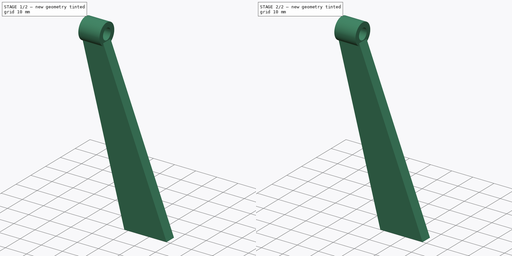
[diagram: build sequence overview — one tinted view per stage of 2, left to right]
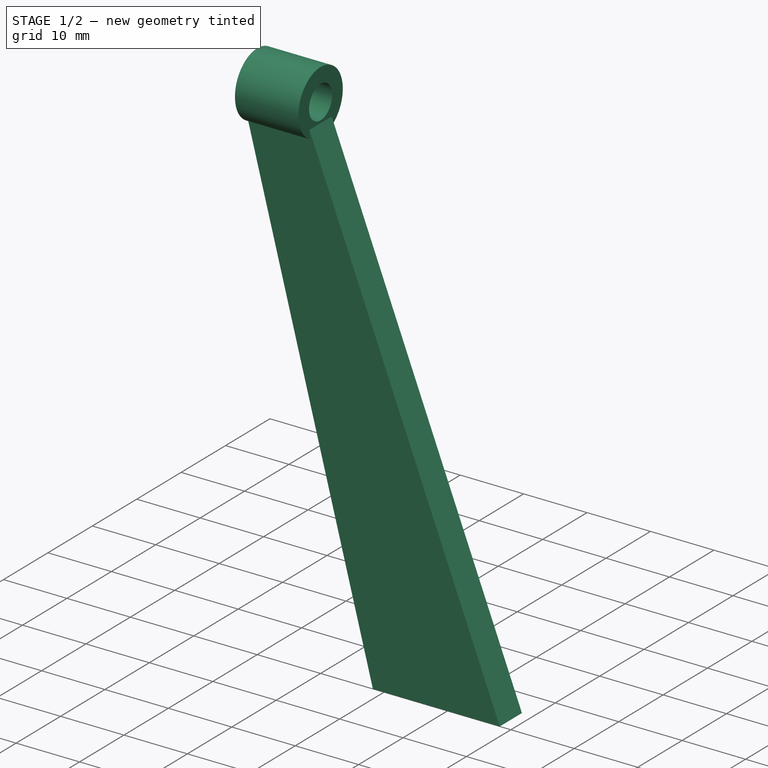
[diagram: stage 1 of 2 — iso view after this stage's code; geometry added in this stage tinted green]
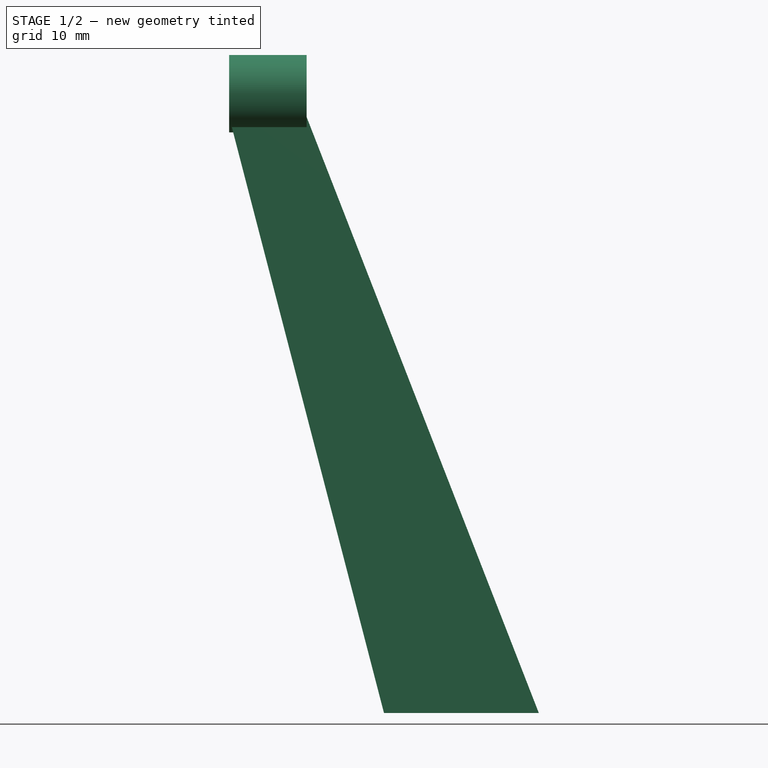
[diagram: stage 1 of 2 — front view after this stage's code; geometry added in this stage tinted green]
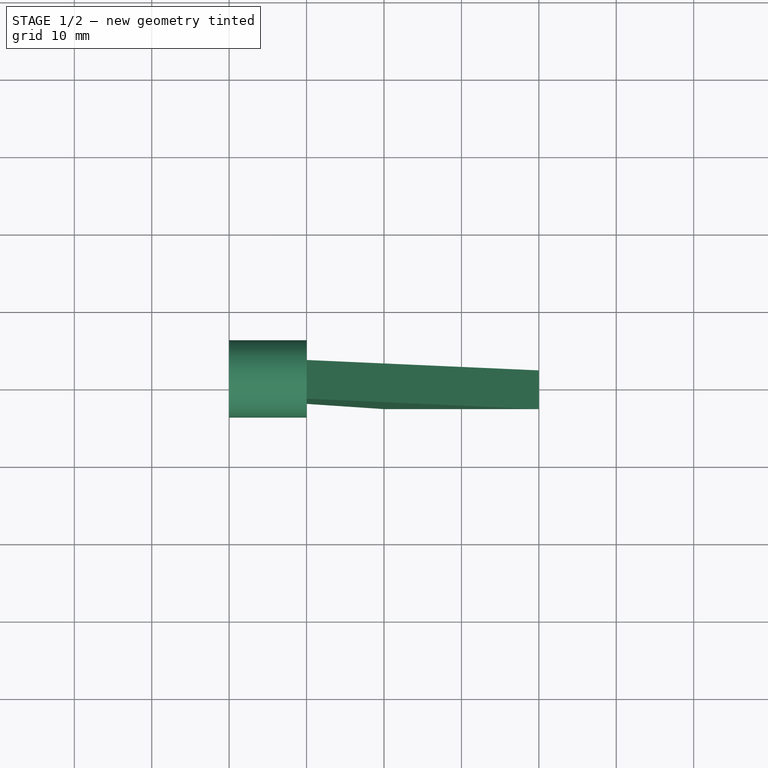
[diagram: stage 1 of 2 — top view after this stage's code; geometry added in this stage tinted green]
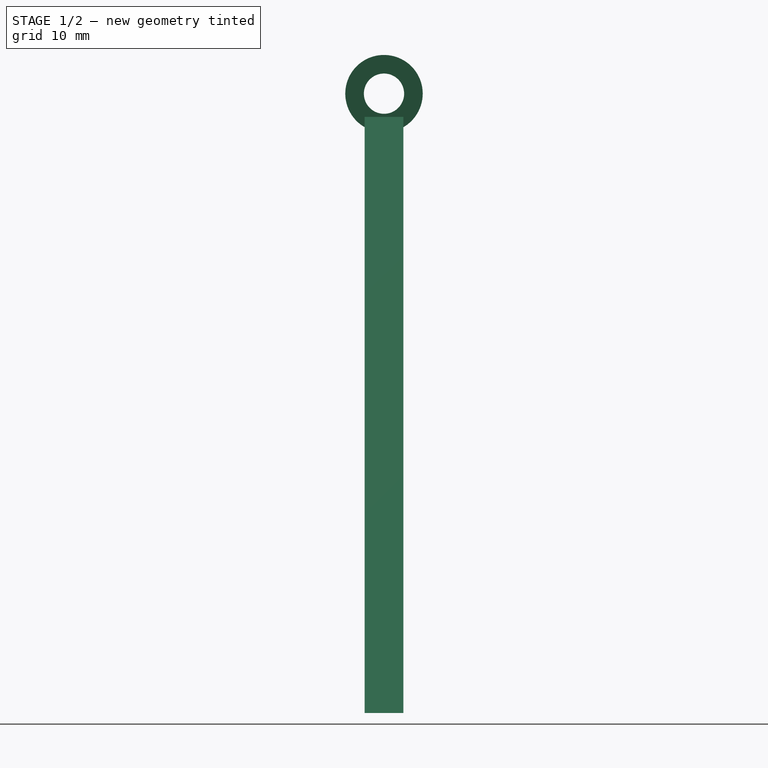
[diagram: stage 1 of 2 — right view after this stage's code; geometry added in this stage tinted green]
FCSTD DOCUMENT  (FreeCAD 0.21R33771 (Git))
Label: SFT-Mk5-Slider Mount
License: Public Domain
LicenseURL: https://en.wikipedia.org/wiki/Public_domain
objects: PartDesign::CoordinateSystem×1, Part::FeaturePython×1, Sketcher::SketchObject×1, Part::Extrusion×1, Part::MultiFuse×1, App::Part×1
note: 5 computed .brp shape members not serialized (recipe doc carries the construction recipe); baked Part::Feature solids carry a one-line shape summary decoded from their .brp

FEATURE [PartDesign::CoordinateSystem] LCS_Origin
  AttacherType = Attacher::AttachEngine3D
  MapMode = 2
  Support = -> [X_Axis]
FEATURE [Part::FeaturePython] Tube  # WARN: FeaturePython — macro-defined, semantics opaque (R4)
  AttacherType = Attacher::AttachEngine3D
  Height = 10
  InnerRadius = 2.6
  OuterRadius = 5
  Placement = pos=(0,0,80) rot=(0,-1,0;1.5708rad)
FEATURE [Sketcher::SketchObject] Sketch
  FullyConstrained = true
  MapMode = 5
  Placement = pos=(0,0,0) rot=(1,0,0;1.5708rad)
  Support = -> [XZ_Plane]
  sketch-geometry (4):
    g0: LineSegment StartX=-10 StartY=77 StartZ=0 EndX=10 EndY=0 EndZ=0
    g1: LineSegment StartX=-10 StartY=77 StartZ=0 EndX=0 EndY=77 EndZ=0
    g2: LineSegment StartX=0 StartY=77 StartZ=0 EndX=30 EndY=0 EndZ=0
    g3: LineSegment StartX=30 StartY=0 StartZ=0 EndX=10 EndY=0 EndZ=0
  constraints (12):
    c: Coincident(g1,g0)
    c: Horizontal(g1)
    c: Coincident(g2,g1)
    c: PointOnObject(g2,g-1)
    c: Coincident(g3,g2)
    c: Coincident(g3,g0)
    c: Horizontal(g3)
    c: DistanceX(g0) = 10
    c: DistanceX(g0) = -10
    c: DistanceY(g0) = 77
    c: DistanceX(g1,g1) = 10
    c: DistanceX(g3,g3) = 20
FEATURE [Part::Extrusion] Extrude
  Base = -> Sketch
  Dir = (0,-1,-2e-16)
  DirMode = 2
  FaceMakerClass = Part::FaceMakerBullseye
  LengthFwd = 5
  LengthRev = 0
  Solid = true
  Symmetric = true
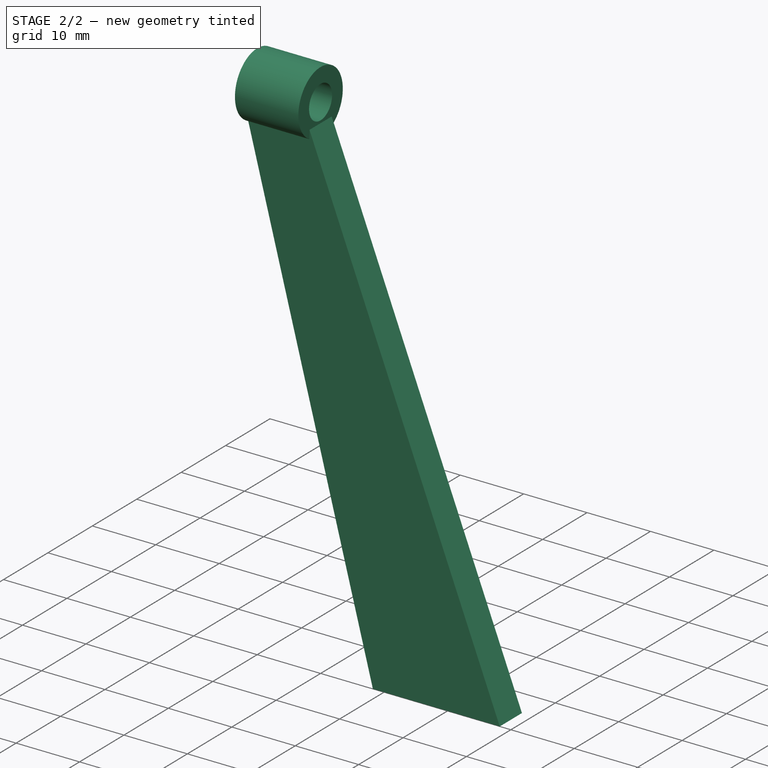
[diagram: stage 2 of 2 — iso view after this stage's code; geometry added in this stage tinted green]
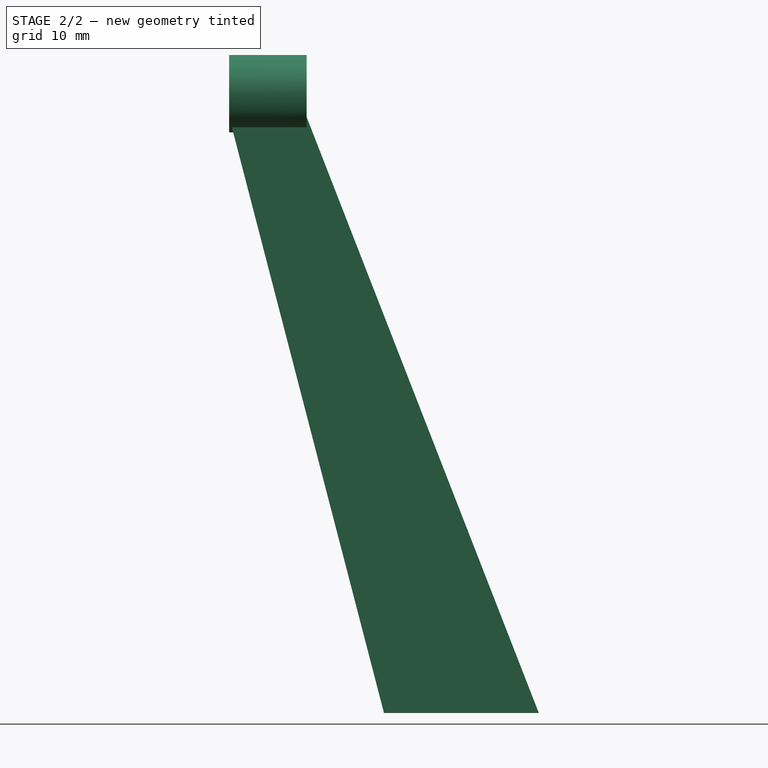
[diagram: stage 2 of 2 — front view after this stage's code; geometry added in this stage tinted green]
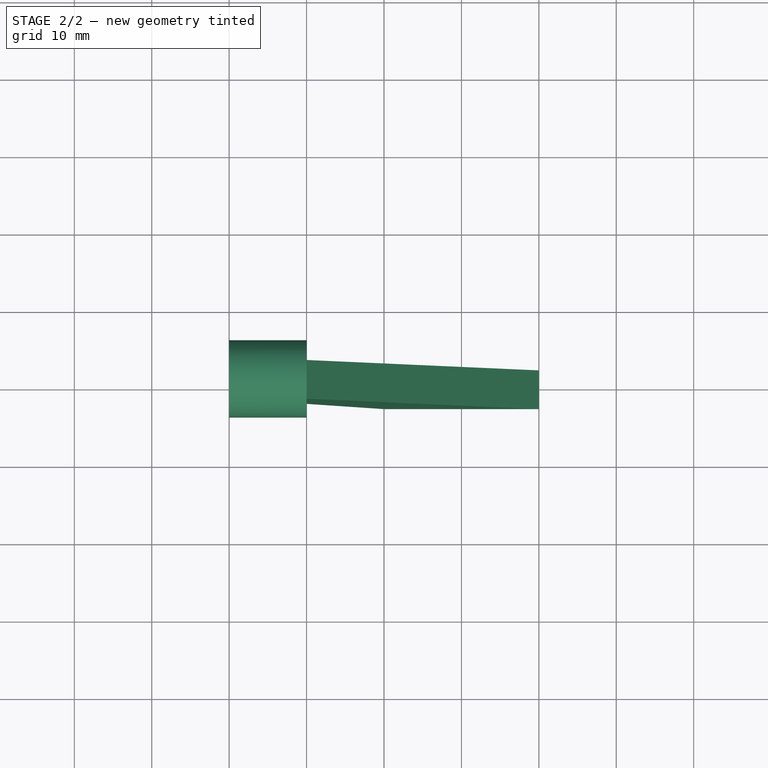
[diagram: stage 2 of 2 — top view after this stage's code; geometry added in this stage tinted green]
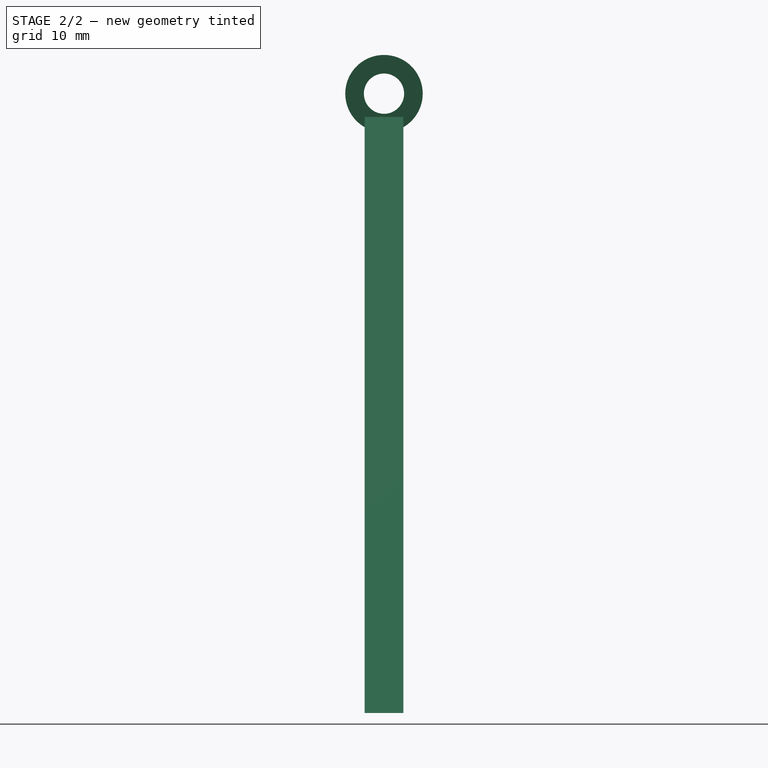
[diagram: stage 2 of 2 — right view after this stage's code; geometry added in this stage tinted green]
FEATURE [Part::MultiFuse] Fusion
  Shapes = -> [Tube,Extrude]
FEATURE [App::Part] Part  label="Slider Mount"
  Group = -> [LCS_Origin,Extrude,Sketch,Tube,Fusion]
  Origin = -> Origin
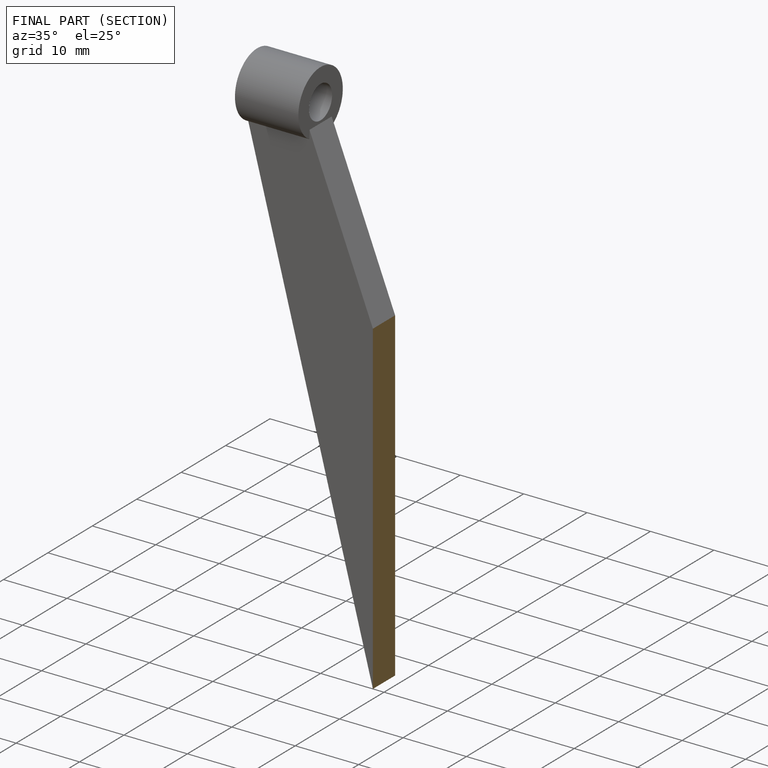
[diagram: finished part — half-section view (interior)]
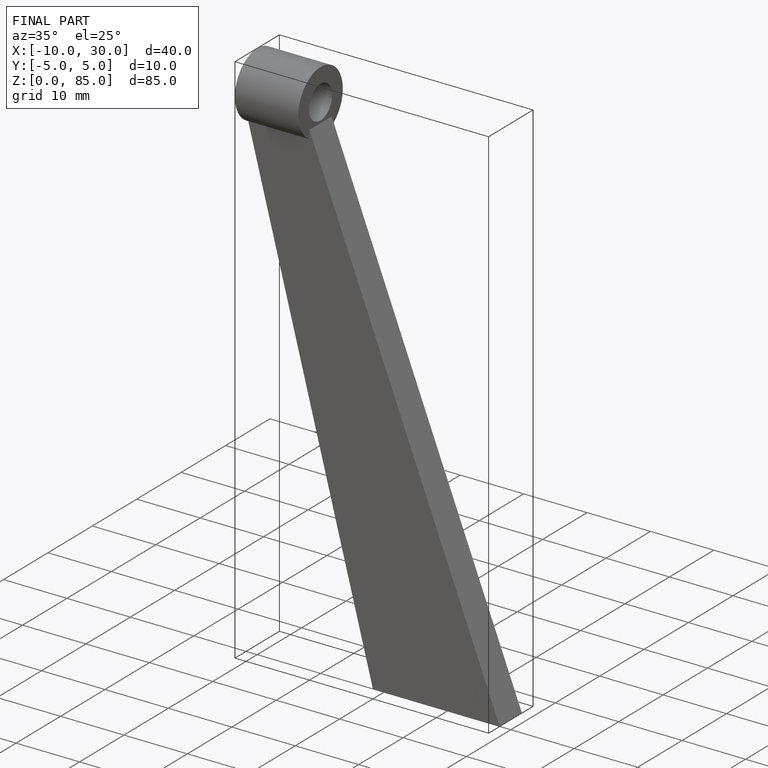
[diagram: finished part — iso view with bounding-box wireframe]
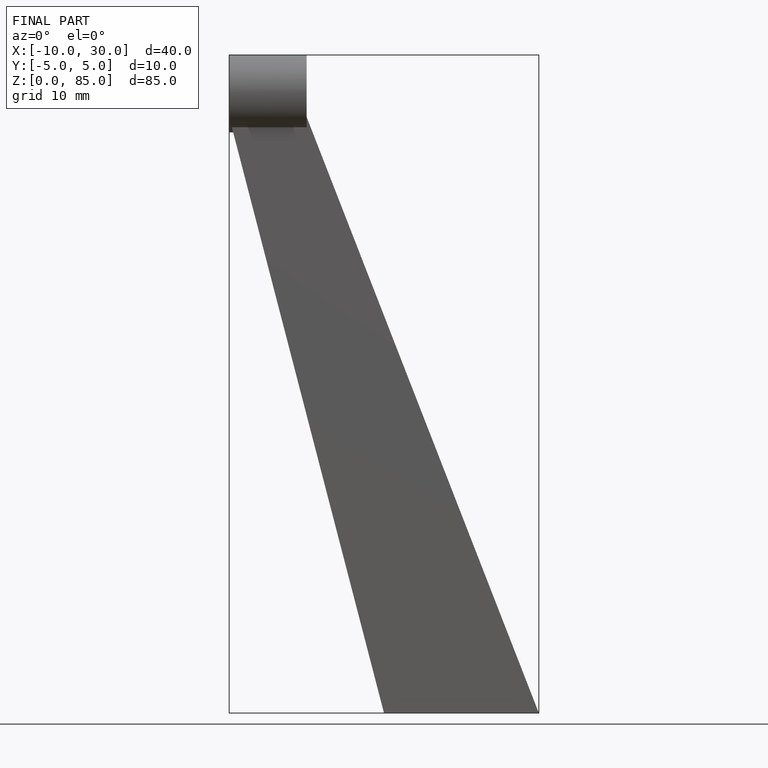
[diagram: finished part — front view with bounding-box wireframe]
